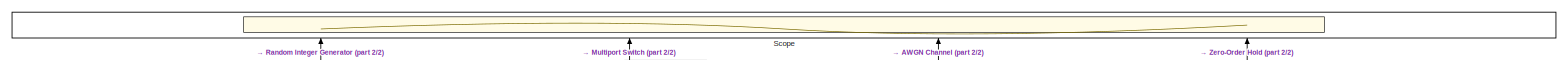
[diagram: root canvas - part 1/2, full width, top band]
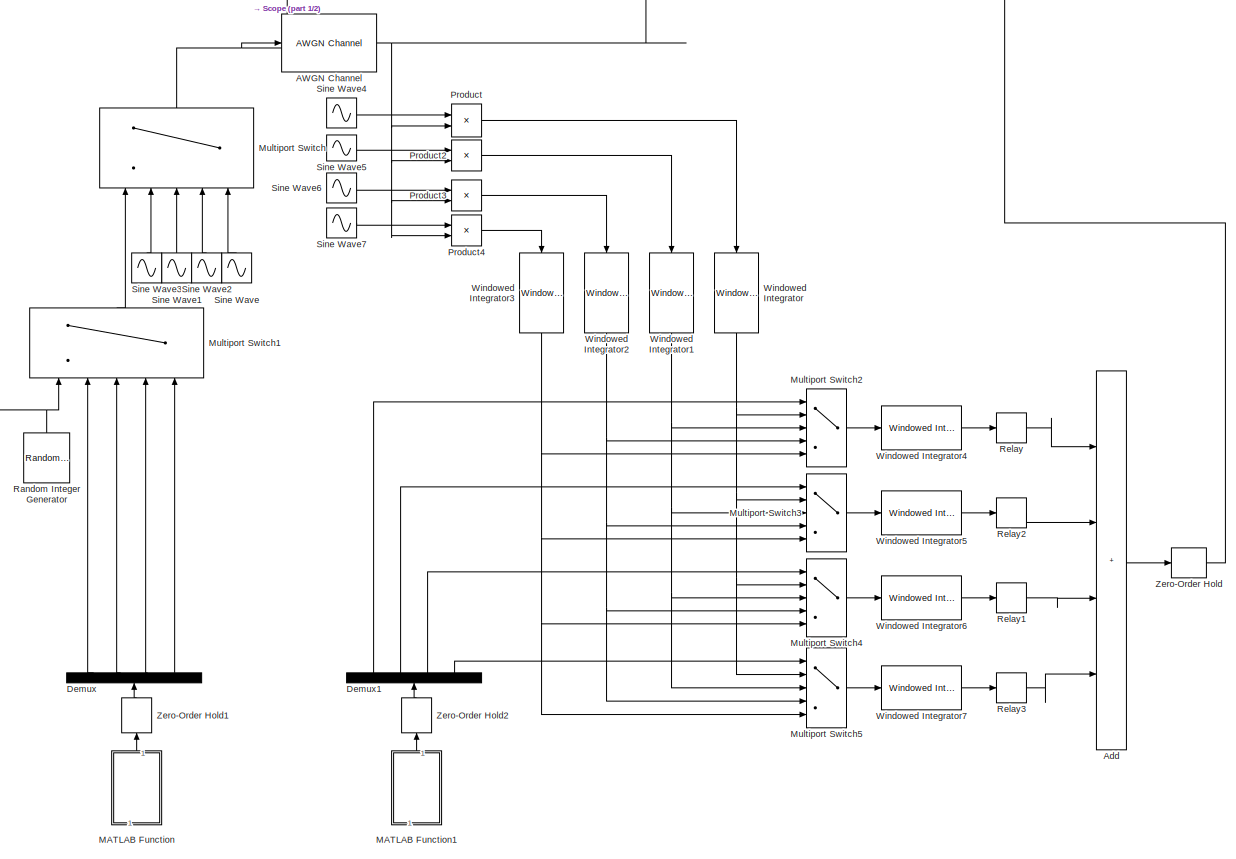
[diagram: root canvas - part 2/2, center side, full height]
MODEL slx_b68a371a0fc3
KIND model
CONFIG AbsTol = auto
CONFIG EnableMultiTasking = off
CONFIG FixedStep = auto
CONFIG MaxStep = auto
CONFIG MinStep = auto
CONFIG RelTol = 1e-3
CONFIG SampleTimeConstraint = Unconstrained
CONFIG SolverName = VariableStepAuto
CONFIG StartTime = 0.0
CONFIG StopTime = 4
BLOCK [Reference] AWGN Channel  REF=commchan3/AWGN
Channel
  Ports = [1, 1]
  SourceBlock = commchan3/AWGN\nChannel
  SourceProductBaseCode = CM
  SourceType = AWGN Channel
  UserDataPersistent = on
BLOCK [Sum] Add
  IconShape = rectangular
  Inputs = ++++
  Ports = [4, 1]
BLOCK [Demux] Demux
  NameLocation = right
  Ports = [1, 4]
BLOCK [Demux] Demux1
  NameLocation = right
  Ports = [1, 4]
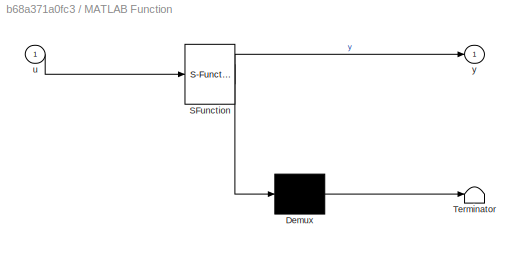
BLOCK [SubSystem] MATLAB Function
  ErrorFcn = Stateflow.Translate.translate
  NameLocation = right
  PermitHierarchicalResolution = ExplicitOnly
  Ports = [1, 1]
  RequestExecContextInheritance = off
  SFBlockType = MATLAB Function
  TreatAsAtomicUnit = on
BLOCK [Demux] MATLAB Function/ Demux 
  Outputs = 1
  Ports = [1, 1]
BLOCK [S-Function] MATLAB Function/ SFunction 
  EnableBusSupport = on
  FunctionName = sf_sfun
  PortCounts = [1 2]
  Ports = [1, 2]
  SFcnIsStateOwnerBlock = off
  SFunctionDeploymentMode = off
  Tag = Stateflow S-Function 2
BLOCK [Terminator] MATLAB Function/ Terminator 
BLOCK [Inport] MATLAB Function/u
BLOCK [Outport] MATLAB Function/y
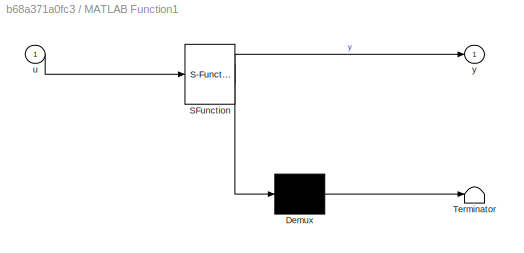
BLOCK [SubSystem] MATLAB Function1
  ErrorFcn = Stateflow.Translate.translate
  NameLocation = right
  PermitHierarchicalResolution = ExplicitOnly
  Ports = [1, 1]
  RequestExecContextInheritance = off
  SFBlockType = MATLAB Function
  TreatAsAtomicUnit = on
BLOCK [Demux] MATLAB Function1/ Demux 
  Outputs = 1
  Ports = [1, 1]
BLOCK [S-Function] MATLAB Function1/ SFunction 
  EnableBusSupport = on
  FunctionName = sf_sfun
  PortCounts = [1 2]
  Ports = [1, 2]
  SFcnIsStateOwnerBlock = off
  SFunctionDeploymentMode = off
  Tag = Stateflow S-Function 1
BLOCK [Terminator] MATLAB Function1/ Terminator 
BLOCK [Inport] MATLAB Function1/u
BLOCK [Outport] MATLAB Function1/y
BLOCK [MultiPortSwitch] Multiport Switch
  DataPortIndices = {0, 1, 2, 3}
  DataPortOrder = Specify indices
  InputSameDT = off
  Inputs = 4
  NameLocation = right
  Ports = [5, 1]
  SaturateOnIntegerOverflow = off
BLOCK [MultiPortSwitch] Multiport Switch1
  DataPortOrder = Zero-based contiguous
  InputSameDT = off
  Inputs = 4
  NameLocation = right
  Ports = [5, 1]
  SaturateOnIntegerOverflow = off
  zeroidx = on
BLOCK [MultiPortSwitch] Multiport Switch2
  DataPortOrder = Zero-based contiguous
  InputSameDT = off
  Inputs = 4
  Ports = [5, 1]
  SaturateOnIntegerOverflow = off
  zeroidx = on
BLOCK [MultiPortSwitch] Multiport Switch3
  DataPortOrder = Zero-based contiguous
  InputSameDT = off
  Inputs = 4
  Ports = [5, 1]
  SaturateOnIntegerOverflow = off
  zeroidx = on
BLOCK [MultiPortSwitch] Multiport Switch4
  DataPortOrder = Zero-based contiguous
  InputSameDT = off
  Inputs = 4
  Ports = [5, 1]
  SaturateOnIntegerOverflow = off
  zeroidx = on
BLOCK [MultiPortSwitch] Multiport Switch5
  DataPortOrder = Zero-based contiguous
  InputSameDT = off
  Inputs = 4
  Ports = [5, 1]
  SaturateOnIntegerOverflow = off
  zeroidx = on
BLOCK [Product] Product
  Ports = [2, 1]
BLOCK [Product] Product2
  Ports = [2, 1]
BLOCK [Product] Product3
  Ports = [2, 1]
BLOCK [Product] Product4
  Ports = [2, 1]
BLOCK [Reference] Random Integer Generator  REF=commrandsrc3/Random Integer
Generator
  NameLocation = right
  Ports = [0, 1]
  SourceBlock = commrandsrc3/Random Integer\nGenerator
  SourceProductBaseCode = CM
  SourceType = Random Integer Generator
BLOCK [Relay] Relay
  OffSwitchValue = 3000
  OnOutputValue = 0
  OnSwitchValue = 4000
BLOCK [Relay] Relay1
  OffSwitchValue = 3000
  OnOutputValue = 2
  OnSwitchValue = 4000
BLOCK [Relay] Relay2
  OffSwitchValue = 3000
  OnSwitchValue = 4000
BLOCK [Relay] Relay3
  OffSwitchValue = 3000
  OnOutputValue = 3
  OnSwitchValue = 4000
BLOCK [Scope] Scope
  Floating = off
  NameLocation = right
  NumInputPorts = 4
  Ports = [4]
  ScopeSpecificationString = Simulink.scopes.TimeScopeBlockCfg('CurrentConfiguration', extmgr.ConfigurationSet(extmgr.Configuration('Core','General UI',true),extmgr.Configuration('Core','Source UI',true),extmgr.Configuration('Sources','WiredSimulink',true),extmgr.Configuration('Visuals','Time Domain',true,'SerializedDisplays',{struct('MinYLimReal','-0.375','MaxYLimReal','3.375','YLabelReal','','MinYLimMag','0.00000','MaxYLimM...<+3385ch>
BLOCK [Sin] Sine Wave
  Frequency = 2 * pi * 40
  Ports = [0, 1]
  SampleTime = 0.001
BLOCK [Sin] Sine Wave1
  Frequency = 2 * pi * 20
  Ports = [0, 1]
  SampleTime = 0.001
BLOCK [Sin] Sine Wave2
  Frequency = 2 * pi * 30
  Ports = [0, 1]
  SampleTime = 0.001
BLOCK [Sin] Sine Wave3
  Frequency = 2 * pi * 10
  Ports = [0, 1]
  SampleTime = 0.001
BLOCK [Sin] Sine Wave4
  Frequency = 2 * pi * 10
  Ports = [0, 1]
  SampleTime = 0.001
BLOCK [Sin] Sine Wave5
  Frequency = 2 * pi * 20
  Ports = [0, 1]
  SampleTime = 0.001
BLOCK [Sin] Sine Wave6
  Frequency = 2 * pi * 30
  Ports = [0, 1]
  SampleTime = 0.001
BLOCK [Sin] Sine Wave7
  Frequency = 2 * pi * 40
  Ports = [0, 1]
  SampleTime = 0.001
BLOCK [Reference] Windowed Integrator  REF=commfilt2/Windowed
Integrator
  NameLocation = left
  Ports = [1, 1]
  SourceBlock = commfilt2/Windowed\nIntegrator
  SourceProductBaseCode = CM
  SourceType = Windowed Integrator
  UserDataPersistent = on
BLOCK [Reference] Windowed Integrator1  REF=commfilt2/Windowed
Integrator
  NameLocation = left
  Ports = [1, 1]
  SourceBlock = commfilt2/Windowed\nIntegrator
  SourceProductBaseCode = CM
  SourceType = Windowed Integrator
  UserDataPersistent = on
BLOCK [Reference] Windowed Integrator2  REF=commfilt2/Windowed
Integrator
  NameLocation = left
  Ports = [1, 1]
  SourceBlock = commfilt2/Windowed\nIntegrator
  SourceProductBaseCode = CM
  SourceType = Windowed Integrator
  UserDataPersistent = on
BLOCK [Reference] Windowed Integrator3  REF=commfilt2/Windowed
Integrator
  NameLocation = left
  Ports = [1, 1]
  SourceBlock = commfilt2/Windowed\nIntegrator
  SourceProductBaseCode = CM
  SourceType = Windowed Integrator
  UserDataPersistent = on
BLOCK [Reference] Windowed Integrator4  REF=commfilt2/Windowed
Integrator
  Ports = [1, 1]
  SourceBlock = commfilt2/Windowed\nIntegrator
  SourceProductBaseCode = CM
  SourceType = Windowed Integrator
  UserDataPersistent = on
BLOCK [Reference] Windowed Integrator5  REF=commfilt2/Windowed
Integrator
  Ports = [1, 1]
  SourceBlock = commfilt2/Windowed\nIntegrator
  SourceProductBaseCode = CM
  SourceType = Windowed Integrator
  UserDataPersistent = on
BLOCK [Reference] Windowed Integrator6  REF=commfilt2/Windowed
Integrator
  Ports = [1, 1]
  SourceBlock = commfilt2/Windowed\nIntegrator
  SourceProductBaseCode = CM
  SourceType = Windowed Integrator
  UserDataPersistent = on
BLOCK [Reference] Windowed Integrator7  REF=commfilt2/Windowed
Integrator
  Ports = [1, 1]
  SourceBlock = commfilt2/Windowed\nIntegrator
  SourceProductBaseCode = CM
  SourceType = Windowed Integrator
  UserDataPersistent = on
BLOCK [ZeroOrderHold] Zero-Order Hold
  SampleTime = 0.5
BLOCK [ZeroOrderHold] Zero-Order Hold1
  NameLocation = right
  SampleTime = 0.5
BLOCK [ZeroOrderHold] Zero-Order Hold2
  NameLocation = right
  SampleTime = 0.5
NET AWGN Channel:1 -> Product2:2, Product3:2, Product4:2, Product:2, Scope:3
LINE Add:1 -> Zero-Order Hold:1
LINE Demux1:1 -> Multiport Switch2:1
LINE Demux1:2 -> Multiport Switch3:1
LINE Demux1:3 -> Multiport Switch4:1
LINE Demux1:4 -> Multiport Switch5:1
LINE Demux:1 -> Multiport Switch1:2
LINE Demux:2 -> Multiport Switch1:3
LINE Demux:3 -> Multiport Switch1:4
LINE Demux:4 -> Multiport Switch1:5
LINE MATLAB Function1:1 -> Zero-Order Hold2:1
LINE MATLAB Function:1 -> Zero-Order Hold1:1
LINE Multiport Switch1:1 -> Multiport Switch:1
LINE Multiport Switch2:1 -> Windowed Integrator4:1
LINE Multiport Switch3:1 -> Windowed Integrator5:1
LINE Multiport Switch4:1 -> Windowed Integrator6:1
LINE Multiport Switch5:1 -> Windowed Integrator7:1
NET Multiport Switch:1 -> AWGN Channel:1, Scope:2
LINE Product2:1 -> Windowed Integrator1:1
LINE Product3:1 -> Windowed Integrator2:1
LINE Product4:1 -> Windowed Integrator3:1
LINE Product:1 -> Windowed Integrator:1
NET Random Integer Generator:1 -> Multiport Switch1:1, Scope:1
LINE Relay1:1 -> Add:3
LINE Relay2:1 -> Add:2
LINE Relay3:1 -> Add:4
LINE Relay:1 -> Add:1
LINE Sine Wave1:1 -> Multiport Switch:3
LINE Sine Wave2:1 -> Multiport Switch:4
LINE Sine Wave3:1 -> Multiport Switch:2
LINE Sine Wave4:1 -> Product:1
LINE Sine Wave5:1 -> Product2:1
LINE Sine Wave6:1 -> Product3:1
LINE Sine Wave7:1 -> Product4:1
LINE Sine Wave:1 -> Multiport Switch:5
NET Windowed Integrator1:1 -> Multiport Switch2:3, Multiport Switch3:3, Multiport Switch4:3, Multiport Switch5:3
NET Windowed Integrator2:1 -> Multiport Switch2:4, Multiport Switch3:4, Multiport Switch4:4, Multiport Switch5:4
NET Windowed Integrator3:1 -> Multiport Switch2:5, Multiport Switch3:5, Multiport Switch4:5, Multiport Switch5:5
LINE Windowed Integrator4:1 -> Relay:1
LINE Windowed Integrator5:1 -> Relay2:1
LINE Windowed Integrator6:1 -> Relay1:1
LINE Windowed Integrator7:1 -> Relay3:1
NET Windowed Integrator:1 -> Multiport Switch2:2, Multiport Switch3:2, Multiport Switch4:2, Multiport Switch5:2
LINE Zero-Order Hold1:1 -> Demux:1
LINE Zero-Order Hold2:1 -> Demux1:1
LINE Zero-Order Hold:1 -> Scope:4
note: NET lines group one-source signal fan-out (src -> all destinations, sorted); 1:1 wires keep LINE
CHART MATLAB Function states=1 transitions=1
  STATE_LABEL 'eML_blk_kernel()'
  STATE_LABEL "SCRIPT:\nfunction y = fcn(u)\n\nrng(5)\ny = randperm(4)' - 1;\n"
CHART MATLAB Function1 states=1 transitions=1
  STATE_LABEL 'eML_blk_kernel()'
  STATE_LABEL "SCRIPT:\nfunction y = fcn(u)\n\nrng(5)\ny = randperm(4)' - 1;\n"
CHART  states=0 transitions=0
CHART  states=0 transitions=0
